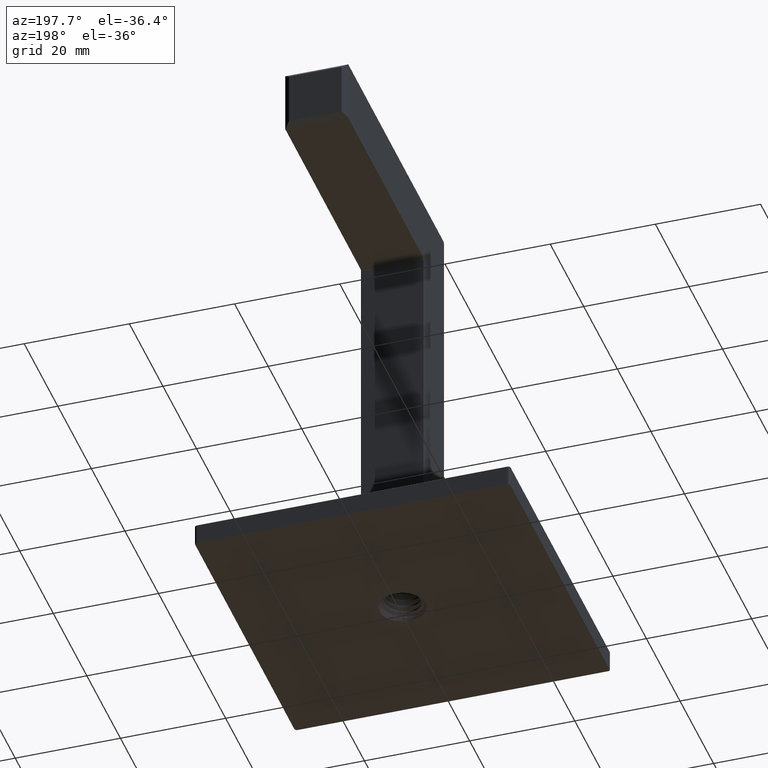
[diagram: clean part render]
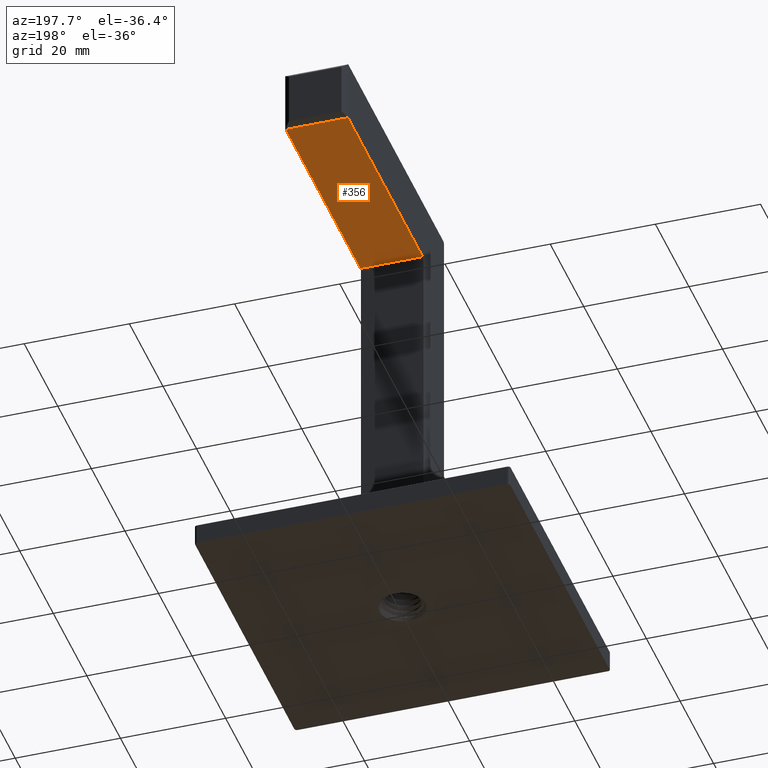
[diagram: same view with one face highlighted and labeled with its STEP entity id]
A machine part, auxiliary view. The second image highlights one B-rep face of the part: STEP entity #356.
In plain terms, the highlighted planar face has unit normal (0, 0, 1).
Its self-contained STEP definition (entity closure, byte-faithful):
#192 = VERTEX_POINT ( 'NONE', #6202 ) ;
#245 = CARTESIAN_POINT ( 'NONE',  ( 6.000000000000000000, -6.700000000000019718, 73.00000000000001421 ) ) ;
#356 = ADVANCED_FACE ( 'NONE', ( #5046 ), #4318, .F. ) ;
#1174 = CARTESIAN_POINT ( 'NONE',  ( -5.900000000000000355, 6.499999999999989342, 73.00000000000001421 ) ) ;
#1238 = CARTESIAN_POINT ( 'NONE',  ( 5.899999999999999467, 6.499999999999989342, 73.00000000000001421 ) ) ;
#1559 = B_SPLINE_CURVE_WITH_KNOTS ( 'NONE', 3,
 ( #3784, #7739, #2979, #10020 ),
 .UNSPECIFIED., .F., .F.,
 ( 4, 4 ),
 ( 0.000000000000000000, 1.000000000000000000 ),
 .UNSPECIFIED. ) ;
#1636 = ORIENTED_EDGE ( 'NONE', *, *, #2990, .T. ) ;
#1683 = VECTOR ( 'NONE', #7810, 1000.000000000000000 ) ;
#1830 = EDGE_CURVE ( 'NONE', #7488, #7330, #8946, .T. ) ;
#2049 = LINE ( 'NONE', #3915, #1683 ) ;
#2122 = CARTESIAN_POINT ( 'NONE',  ( 6.000000000000000000, 50.99999999999998579, 73.00000000000001421 ) ) ;
#2979 = CARTESIAN_POINT ( 'NONE',  ( -5.786188271604761901, 6.499999999999988454, 73.00000000000001421 ) ) ;
#2990 = EDGE_CURVE ( 'NONE', #192, #7488, #7472, .T. ) ;
#2992 = VERTEX_POINT ( 'NONE', #6860 ) ;
#3264 = EDGE_CURVE ( 'NONE', #7291, #4575, #1559, .T. ) ;
#3518 = DIRECTION ( 'NONE',  ( -1.000000000000000000, 0.000000000000000000, 0.000000000000000000 ) ) ;
#3784 = CARTESIAN_POINT ( 'NONE',  ( -5.558564814814817012, 6.499999999999989342, 73.00000000000001421 ) ) ;
#3915 = CARTESIAN_POINT ( 'NONE',  ( -5.900000000000000355, -6.700000000000019718, 73.00000000000001421 ) ) ;
#4318 = PLANE ( 'NONE',  #5466 ) ;
#4377 = CARTESIAN_POINT ( 'NONE',  ( 5.558564814814815236, 6.499999999999989342, 73.00000000000001421 ) ) ;
#4575 = VERTEX_POINT ( 'NONE', #6678 ) ;
#4683 = CARTESIAN_POINT ( 'NONE',  ( 5.899999999999999467, -6.700000000000019718, 73.00000000000001421 ) ) ;
#4827 = DIRECTION ( 'NONE',  ( 0.000000000000000000, 0.000000000000000000, 1.000000000000000000 ) ) ;
#4998 = EDGE_CURVE ( 'NONE', #7330, #2992, #9561, .T. ) ;
#5046 = FACE_OUTER_BOUND ( 'NONE', #9839, .T. ) ;
#5257 = EDGE_CURVE ( 'NONE', #4575, #192, #2049, .T. ) ;
#5466 = AXIS2_PLACEMENT_3D ( 'NONE', #245, #4827, #9737 ) ;
#6202 = CARTESIAN_POINT ( 'NONE',  ( -5.900000000000000355, 50.99999999999998579, 73.00000000000001421 ) ) ;
#6549 = CARTESIAN_POINT ( 'NONE',  ( -5.558564814814817012, 6.499999999999989342, 73.00000000000001421 ) ) ;
#6678 = CARTESIAN_POINT ( 'NONE',  ( -5.900000000000000355, 6.499999999999989342, 73.00000000000001421 ) ) ;
#6691 = CARTESIAN_POINT ( 'NONE',  ( 5.672376543209788124, 6.499999999999988454, 73.00000000000001421 ) ) ;
#6766 = CARTESIAN_POINT ( 'NONE',  ( 5.786188271604760125, 6.499999999999988454, 73.00000000000001421 ) ) ;
#6860 = CARTESIAN_POINT ( 'NONE',  ( 5.558564814814815236, 6.499999999999989342, 73.00000000000001421 ) ) ;
#6920 = VECTOR ( 'NONE', #7687, 1000.000000000000000 ) ;
#7081 = ORIENTED_EDGE ( 'NONE', *, *, #5257, .T. ) ;
#7137 = ORIENTED_EDGE ( 'NONE', *, *, #1830, .T. ) ;
#7291 = VERTEX_POINT ( 'NONE', #6549 ) ;
#7330 = VERTEX_POINT ( 'NONE', #8123 ) ;
#7427 = CARTESIAN_POINT ( 'NONE',  ( 5.899999999999999467, 50.99999999999998579, 73.00000000000001421 ) ) ;
#7472 = LINE ( 'NONE', #2122, #7943 ) ;
#7488 = VERTEX_POINT ( 'NONE', #7427 ) ;
#7687 = DIRECTION ( 'NONE',  ( -0.000000000000000000, -1.000000000000000000, -0.000000000000000000 ) ) ;
#7739 = CARTESIAN_POINT ( 'NONE',  ( -5.672376543209789013, 6.499999999999988454, 73.00000000000001421 ) ) ;
#7810 = DIRECTION ( 'NONE',  ( 0.000000000000000000, 1.000000000000000000, -0.000000000000000000 ) ) ;
#7943 = VECTOR ( 'NONE', #9070, 1000.000000000000000 ) ;
#8123 = CARTESIAN_POINT ( 'NONE',  ( 5.899999999999999467, 6.499999999999989342, 73.00000000000001421 ) ) ;
#8249 = ORIENTED_EDGE ( 'NONE', *, *, #4998, .T. ) ;
#8451 = VECTOR ( 'NONE', #3518, 1000.000000000000000 ) ;
#8946 = LINE ( 'NONE', #4683, #6920 ) ;
#9070 = DIRECTION ( 'NONE',  ( 1.000000000000000000, 0.000000000000000000, 0.000000000000000000 ) ) ;
#9525 = LINE ( 'NONE', #1174, #8451 ) ;
#9561 = B_SPLINE_CURVE_WITH_KNOTS ( 'NONE', 3,
 ( #1238, #6766, #6691, #4377 ),
 .UNSPECIFIED., .F., .F.,
 ( 4, 4 ),
 ( 0.000000000000000000, 1.000000000000000000 ),
 .UNSPECIFIED. ) ;
#9737 = DIRECTION ( 'NONE',  ( 1.000000000000000000, 0.000000000000000000, -0.000000000000000000 ) ) ;
#9839 = EDGE_LOOP ( 'NONE', ( #7137, #8249, #9857, #10022, #7081, #1636 ) ) ;
#9857 = ORIENTED_EDGE ( 'NONE', *, *, #9956, .T. ) ;
#9956 = EDGE_CURVE ( 'NONE', #2992, #7291, #9525, .T. ) ;
#10020 = CARTESIAN_POINT ( 'NONE',  ( -5.900000000000000355, 6.499999999999989342, 73.00000000000001421 ) ) ;
#10022 = ORIENTED_EDGE ( 'NONE', *, *, #3264, .T. ) ;